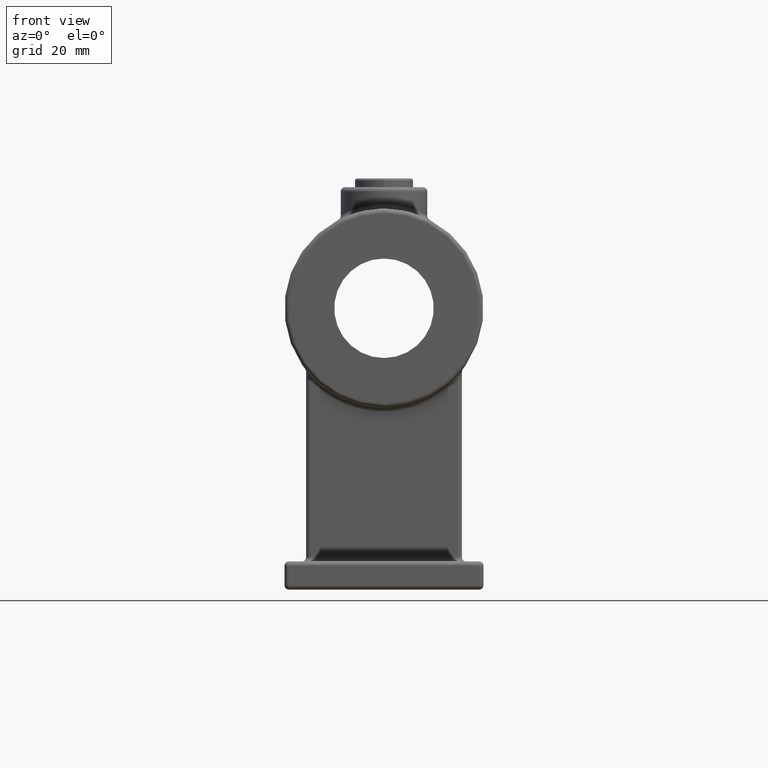
[diagram: clean part render]
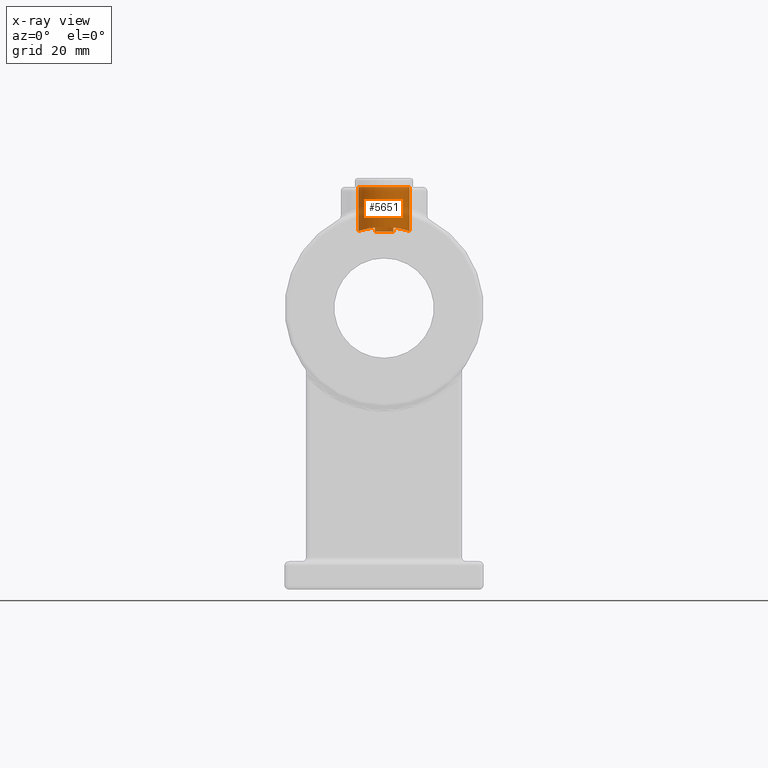
[diagram: x-ray — body ghosted, one internal face saturated and labeled with its STEP entity id]
A machine part, front view, then the same camera in x-ray: the body is ghosted and one INTERNAL B-rep face — a face not visible from any outside direction — is saturated and labeled: STEP entity #5651.
In plain terms, the highlighted cylindrical surface (bore or boss wall) has radius 5.9 mm, axis along (0, 0, 1).
Its self-contained STEP definition (entity closure, byte-faithful):
#459 = DIRECTION ( 'NONE',  ( -0.000000000000000000, -0.000000000000000000, 1.000000000000000000 ) ) ;
#795 = ORIENTED_EDGE ( 'NONE', *, *, #15761, .T. ) ;
#840 = CARTESIAN_POINT ( 'NONE',  ( -0.3372227340062654566, 66.09971019220142807, 83.75009119282394465 ) ) ;
#890 = DIRECTION ( 'NONE',  ( -0.000000000000000000, -0.000000000000000000, 1.000000000000000000 ) ) ;
#948 = CARTESIAN_POINT ( 'NONE',  ( 5.862749153731346752, 71.25402658767245612, 82.80997161502494919 ) ) ;
#1000 = CARTESIAN_POINT ( 'NONE',  ( -5.767991101099279483, 73.28707260441596816, 82.84085532814034991 ) ) ;
#1050 = CARTESIAN_POINT ( 'NONE',  ( -5.860684691803861313, 71.23958122705428764, 82.81065093658480691 ) ) ;
#1166 = CARTESIAN_POINT ( 'NONE',  ( -4.987433710475499105, 75.17020701803920701, 83.07532725736679424 ) ) ;
#1406 = EDGE_CURVE ( 'NONE', #7075, #7075, #5111, .T. ) ;
#1711 = VERTEX_POINT ( 'NONE', #13569 ) ;
#1907 = VERTEX_POINT ( 'NONE', #6937 ) ;
#1925 = LINE ( 'NONE', #9465, #11154 ) ;
#1971 = B_SPLINE_CURVE_WITH_KNOTS ( 'NONE', 3,
 ( #9441, #6921, #8153, #13123, #5629, #11831, #11880, #13074, #5732, #3309, #5672, #15544 ),
 .UNSPECIFIED., .F., .F.,
 ( 4, 2, 2, 2, 2, 4 ),
 ( 0.007111128128418352755, 0.007656017251411208896, 0.008200906374404064170, 0.009290684620389776452, 0.01038046286637548873, 0.01147024111236120275 ),
 .UNSPECIFIED. ) ;
#2067 = CARTESIAN_POINT ( 'NONE',  ( 5.679125216055249226, 73.63480140600780999, 82.86963586841331164 ) ) ;
#2069 = DIRECTION ( 'NONE',  ( 1.000000000000000000, 0.000000000000000000, 0.000000000000000000 ) ) ;
#2163 = CARTESIAN_POINT ( 'NONE',  ( 5.406215420578908137, 69.61285300371589813, 82.95413330537006402 ) ) ;
#2211 = CARTESIAN_POINT ( 'NONE',  ( -4.269556410144694780, 67.91379681494443332, 83.25883985988787117 ) ) ;
#2425 = CARTESIAN_POINT ( 'NONE',  ( -2.328126250973094891, 66.56808875518723312, 83.60768469869339015 ) ) ;
#2487 = CARTESIAN_POINT ( 'NONE',  ( 0.000000000000000000, 72.00000000000000000, 93.00000000000000000 ) ) ;
#2844 = CYLINDRICAL_SURFACE ( 'NONE', #9862, 5.899999999999987033 ) ;
#2899 = ORIENTED_EDGE ( 'NONE', *, *, #11823, .T. ) ;
#2995 = B_SPLINE_CURVE_WITH_KNOTS ( 'NONE', 3,
 ( #4507, #7036, #14228, #13142, #9313, #13099, #5761, #6943, #9507, #2067, #3236, #13039, #10640, #8283, #948, #14277, #5701, #2163, #10754, #6829, #6899, #14325, #15575, #10547, #3178, #3287, #8175, #15507, #5649, #8131, #10598, #840, #14528, #8328, #9568, #2425, #14478, #7140, #10850, #12221, #2211, #3606, #3664, #15830, #7254, #3540, #12126, #1050, #6021, #3493, #15881, #1000, #8498, #14651, #10807, #1166, #8382, #12286, #9720, #7314, #11017, #13402, #13307, #4878 ),
 .UNSPECIFIED., .F., .F.,
 ( 4, 2, 2, 2, 2, 2, 2, 2, 2, 2, 2, 2, 2, 2, 2, 2, 2, 2, 2, 2, 2, 2, 2, 2, 2, 2, 2, 2, 2, 2, 2, 4 ),
 ( 0.000000000000000000, 0.002047199048060084972, 0.003070798572090141336, 0.004094398096120197700, 0.005117997620150254064, 0.006141597144180310427, 0.007165196668210365924, 0.008188796192240423155, 0.009212395716270478652, 0.01023599524030053762, 0.01125959476433059311, 0.01228319428836065035, 0.01330679381239070584, 0.01433039333642076134, 0.01535399286045081683, 0.01637759238448087407, 0.01740119190851093303, 0.01842479143254098506, 0.01944839095657104056, 0.02047199048060109952, 0.02149559000463115502, 0.02251918952866120358, 0.02354278905269125907, 0.02456638857672131457, 0.02558998810075136660, 0.02661358762478141862, 0.02763718714881147412, 0.02866078667284152615, 0.02968438619687158164, 0.03070798572090163367, 0.03173158524493168570, 0.03275518476896174119 ),
 .UNSPECIFIED. ) ;
#3178 = CARTESIAN_POINT ( 'NONE',  ( 3.238087907689306544, 67.05633381982868002, 83.47067598261641308 ) ) ;
#3202 = VERTEX_POINT ( 'NONE', #8369 ) ;
#3236 = CARTESIAN_POINT ( 'NONE',  ( 5.764815871942549741, 73.30223823753597401, 82.84188602426628734 ) ) ;
#3287 = CARTESIAN_POINT ( 'NONE',  ( 2.650208868979230026, 66.71781848573174045, 83.56414494404499749 ) ) ;
#3309 = CARTESIAN_POINT ( 'NONE',  ( -1.447657998286671077, 77.73119282420590537, 82.69449174879007103 ) ) ;
#3493 = CARTESIAN_POINT ( 'NONE',  ( -5.903893127119784978, 72.27159118749021616, 82.79625148904345622 ) ) ;
#3539 = ORIENTED_EDGE ( 'NONE', *, *, #8891, .T. ) ;
#3540 = CARTESIAN_POINT ( 'NONE',  ( -5.641897927537138813, 70.24019773026360269, 82.88148627991684236 ) ) ;
#3606 = CARTESIAN_POINT ( 'NONE',  ( -4.711692717923503082, 68.43263120201559957, 83.14977401237563015 ) ) ;
#3664 = CARTESIAN_POINT ( 'NONE',  ( -4.909291466704130080, 68.71017412564407323, 83.09677241766104316 ) ) ;
#3936 = VERTEX_POINT ( 'NONE', #4517 ) ;
#4507 = CARTESIAN_POINT ( 'NONE',  ( 2.135415650406248922, 77.49999999999998579, 83.62800311359220018 ) ) ;
#4517 = CARTESIAN_POINT ( 'NONE',  ( 2.135415650406248922, 77.49999999999998579, 82.62108112460754228 ) ) ;
#4628 = DIRECTION ( 'NONE',  ( 0.000000000000000000, 0.000000000000000000, -1.000000000000000000 ) ) ;
#4878 = CARTESIAN_POINT ( 'NONE',  ( -2.135415650406248922, 77.49999999999998579, 83.62800311359220018 ) ) ;
#5111 = CIRCLE ( 'NONE', #7527, 5.899999999999988809 ) ;
#5585 = CARTESIAN_POINT ( 'NONE',  ( 2.135415650406248922, 77.49999999999998579, 93.00000000000000000 ) ) ;
#5629 = CARTESIAN_POINT ( 'NONE',  ( 1.264651027529821947, 77.76575313761853181, 82.70580143484149005 ) ) ;
#5649 = CARTESIAN_POINT ( 'NONE',  ( 1.368118815230476848, 66.25064018036177060, 83.70305882993842772 ) ) ;
#5651 = ADVANCED_FACE ( 'NONE', ( #11502, #15344 ), #2844, .F. ) ;
#5672 = CARTESIAN_POINT ( 'NONE',  ( -1.796031063893039015, 77.63176857409943921, 82.66220954075988914 ) ) ;
#5701 = CARTESIAN_POINT ( 'NONE',  ( 5.644676856068387316, 70.24978311454287905, 82.88059537910497454 ) ) ;
#5732 = CARTESIAN_POINT ( 'NONE',  ( -0.7327647120223762522, 77.86560659651220817, 82.73848380794758839 ) ) ;
#5761 = CARTESIAN_POINT ( 'NONE',  ( 4.980754651821369450, 75.18105293576483916, 83.07718983052042461 ) ) ;
#6021 = CARTESIAN_POINT ( 'NONE',  ( -5.895169116385219787, 71.57964667386529811, 82.79914329980384480 ) ) ;
#6086 = EDGE_LOOP ( 'NONE', ( #6852 ) ) ;
#6248 = CARTESIAN_POINT ( 'NONE',  ( 5.899999999999988809, 72.00000000000000000, 93.00000000000000000 ) ) ;
#6829 = CARTESIAN_POINT ( 'NONE',  ( 4.912803714661662546, 68.71519543548332365, 83.09582656095435027 ) ) ;
#6852 = ORIENTED_EDGE ( 'NONE', *, *, #1406, .T. ) ;
#6899 = CARTESIAN_POINT ( 'NONE',  ( 4.717103033486777619, 68.44003864658498060, 83.14834041799323927 ) ) ;
#6921 = CARTESIAN_POINT ( 'NONE',  ( 1.967145934624941583, 77.56533196083070436, 82.64147293723401333 ) ) ;
#6937 = CARTESIAN_POINT ( 'NONE',  ( 2.135415650406248922, 77.49999999999998579, 83.62800311359220018 ) ) ;
#6943 = CARTESIAN_POINT ( 'NONE',  ( 5.315011544278516631, 74.58411821826409493, 82.98175078668643323 ) ) ;
#7036 = CARTESIAN_POINT ( 'NONE',  ( 2.777319376882606328, 77.25077613389605347, 83.55441866896801173 ) ) ;
#7075 = VERTEX_POINT ( 'NONE', #6248 ) ;
#7140 = CARTESIAN_POINT ( 'NONE',  ( -3.228391759693329810, 67.04985499955728301, 83.47240835436213047 ) ) ;
#7254 = CARTESIAN_POINT ( 'NONE',  ( -5.399648950573686434, 69.59756218313860643, 82.95612305076377879 ) ) ;
#7314 = CARTESIAN_POINT ( 'NONE',  ( -3.623400462269053879, 76.66851073442781228, 83.39840015097421144 ) ) ;
#7527 = AXIS2_PLACEMENT_3D ( 'NONE', #8330, #890, #2069 ) ;
#8046 = EDGE_LOOP ( 'NONE', ( #3539, #795, #10331, #2899 ) ) ;
#8131 = CARTESIAN_POINT ( 'NONE',  ( 0.6948738169443240409, 66.13109568941669636, 83.74015232241326601 ) ) ;
#8153 = CARTESIAN_POINT ( 'NONE',  ( 1.795301490674551692, 77.62318677459047933, 82.65985492068033125 ) ) ;
#8175 = CARTESIAN_POINT ( 'NONE',  ( 2.336357316082826596, 66.57161335649418277, 83.60665304486394689 ) ) ;
#8283 = CARTESIAN_POINT ( 'NONE',  ( 5.896212638560534458, 71.59861653561607397, 82.79879743031558803 ) ) ;
#8328 = CARTESIAN_POINT ( 'NONE',  ( -1.352507585971906900, 66.24689515901030745, 83.70421273696581466 ) ) ;
#8330 = CARTESIAN_POINT ( 'NONE',  ( 0.000000000000000000, 72.00000000000000000, 93.00000000000000000 ) ) ;
#8369 = CARTESIAN_POINT ( 'NONE',  ( -2.135415650406248922, 77.49999999999998579, 83.62800311359220018 ) ) ;
#8382 = CARTESIAN_POINT ( 'NONE',  ( -4.795067939256878020, 75.45438800618798325, 83.12784036345867378 ) ) ;
#8498 = CARTESIAN_POINT ( 'NONE',  ( -5.683551869598980844, 73.62027144980102378, 82.86823447136333698 ) ) ;
#8891 = EDGE_CURVE ( 'NONE', #1907, #3202, #2995, .T. ) ;
#9313 = CARTESIAN_POINT ( 'NONE',  ( 4.363689729595667366, 75.98520386529951054, 83.23647020839341337 ) ) ;
#9439 = LINE ( 'NONE', #5585, #9821 ) ;
#9441 = CARTESIAN_POINT ( 'NONE',  ( 2.135415650406248922, 77.49999999999998579, 82.62108112460754228 ) ) ;
#9465 = CARTESIAN_POINT ( 'NONE',  ( -2.135415650406248922, 77.49999999999998579, 93.00000000000000000 ) ) ;
#9507 = CARTESIAN_POINT ( 'NONE',  ( 5.454371703381312386, 74.27483365942937610, 82.93951444746123514 ) ) ;
#9568 = CARTESIAN_POINT ( 'NONE',  ( -1.688084515285441123, 66.33641436179810569, 83.67662904155116621 ) ) ;
#9720 = CARTESIAN_POINT ( 'NONE',  ( -4.132379523302021518, 76.22462576600977968, 83.29080639285032817 ) ) ;
#9821 = VECTOR ( 'NONE', #459, 1000.000000000000000 ) ;
#9862 = AXIS2_PLACEMENT_3D ( 'NONE', #2487, #11015, #13346 ) ;
#10331 = ORIENTED_EDGE ( 'NONE', *, *, #11924, .F. ) ;
#10547 = CARTESIAN_POINT ( 'NONE',  ( 3.514904403318904080, 67.24921459595613271, 83.41951246804863729 ) ) ;
#10598 = CARTESIAN_POINT ( 'NONE',  ( 0.3472884875382229453, 66.10029410099400593, 83.74990745625078148 ) ) ;
#10640 = CARTESIAN_POINT ( 'NONE',  ( 5.903173516858085002, 72.28102418840232701, 82.79648998747774158 ) ) ;
#10754 = CARTESIAN_POINT ( 'NONE',  ( 5.257591578089630957, 69.30123877235048724, 82.99867523072002484 ) ) ;
#10807 = CARTESIAN_POINT ( 'NONE',  ( -5.317443264420753657, 74.57866335206418285, 82.98101075042673358 ) ) ;
#10850 = CARTESIAN_POINT ( 'NONE',  ( -3.509663631251546789, 67.24540184866587822, 83.42050588871623518 ) ) ;
#11015 = DIRECTION ( 'NONE',  ( -0.000000000000000000, -0.000000000000000000, 1.000000000000000000 ) ) ;
#11017 = CARTESIAN_POINT ( 'NONE',  ( -3.346323493918531344, 76.87119302518856045, 83.45134539706513976 ) ) ;
#11154 = VECTOR ( 'NONE', #4628, 1000.000000000000000 ) ;
#11502 = FACE_OUTER_BOUND ( 'NONE', #6086, .T. ) ;
#11823 = EDGE_CURVE ( 'NONE', #3936, #1907, #9439, .T. ) ;
#11831 = CARTESIAN_POINT ( 'NONE',  ( 0.7269384510956209411, 77.86639295904042513, 82.73874423893035157 ) ) ;
#11880 = CARTESIAN_POINT ( 'NONE',  ( 0.3655978807260402696, 77.89991399185073817, 82.74997141137646395 ) ) ;
#11924 = EDGE_CURVE ( 'NONE', #3936, #1711, #1971, .T. ) ;
#12126 = CARTESIAN_POINT ( 'NONE',  ( -5.734351062340777183, 70.57063662393935033, 82.85172623965102900 ) ) ;
#12221 = CARTESIAN_POINT ( 'NONE',  ( -4.029032013927568379, 67.67670919137445651, 83.31392030755581857 ) ) ;
#12286 = CARTESIAN_POINT ( 'NONE',  ( -4.366761808356059760, 75.98206784830034621, 83.23575235887497570 ) ) ;
#13039 = CARTESIAN_POINT ( 'NONE',  ( 5.877273913704684993, 72.62175381622301984, 82.80515796851000232 ) ) ;
#13074 = CARTESIAN_POINT ( 'NONE',  ( -0.3628166008941002274, 77.90008568037305281, 82.75002847967259356 ) ) ;
#13099 = CARTESIAN_POINT ( 'NONE',  ( 4.789206893065276027, 75.46224424897970096, 83.12937205347212455 ) ) ;
#13123 = CARTESIAN_POINT ( 'NONE',  ( 1.444163735639452772, 77.72343673407958420, 82.69203138044241541 ) ) ;
#13142 = CARTESIAN_POINT ( 'NONE',  ( 4.129039941910141565, 76.22819308148288542, 83.29160670697724811 ) ) ;
#13307 = CARTESIAN_POINT ( 'NONE',  ( -2.456392361120172563, 77.37537841973191632, 83.59120804289703699 ) ) ;
#13346 = DIRECTION ( 'NONE',  ( 1.000000000000000000, 0.000000000000000000, 0.000000000000000000 ) ) ;
#13402 = CARTESIAN_POINT ( 'NONE',  ( -2.762525114872309562, 77.22444804781294181, 83.54773524928170048 ) ) ;
#13569 = CARTESIAN_POINT ( 'NONE',  ( -2.135415650406248922, 77.49999999999998579, 82.62108112460754228 ) ) ;
#14228 = CARTESIAN_POINT ( 'NONE',  ( 3.356049764186252116, 76.90033471153377320, 83.45472343436223639 ) ) ;
#14277 = CARTESIAN_POINT ( 'NONE',  ( 5.736352564717903668, 70.57783150620907975, 82.85108332345203053 ) ) ;
#14325 = CARTESIAN_POINT ( 'NONE',  ( 4.279400197893706626, 67.92432584562919828, 83.25650719338622707 ) ) ;
#14478 = CARTESIAN_POINT ( 'NONE',  ( -2.636157146066158585, 66.71065936238669281, 83.56618052442691180 ) ) ;
#14528 = CARTESIAN_POINT ( 'NONE',  ( -0.6771828162841160292, 66.12897662116216679, 83.74081840030247292 ) ) ;
#14651 = CARTESIAN_POINT ( 'NONE',  ( -5.457068978390144487, 74.26901731825792297, 82.93870015199352963 ) ) ;
#15344 = FACE_OUTER_BOUND ( 'NONE', #8046, .T. ) ;
#15507 = CARTESIAN_POINT ( 'NONE',  ( 1.696341951529441561, 66.33887192837968882, 83.67588089017058905 ) ) ;
#15544 = CARTESIAN_POINT ( 'NONE',  ( -2.135415650406248922, 77.49999999999998579, 82.62108112460754228 ) ) ;
#15575 = CARTESIAN_POINT ( 'NONE',  ( 4.035039559405872112, 67.68224935020832334, 83.31260353633803106 ) ) ;
#15761 = EDGE_CURVE ( 'NONE', #3202, #1711, #1925, .T. ) ;
#15830 = CARTESIAN_POINT ( 'NONE',  ( -5.252676888816315781, 69.29195965865886819, 83.00010278146670828 ) ) ;
#15881 = CARTESIAN_POINT ( 'NONE',  ( -5.877864441582536514, 72.61399253886203553, 82.80495857305979257 ) ) ;